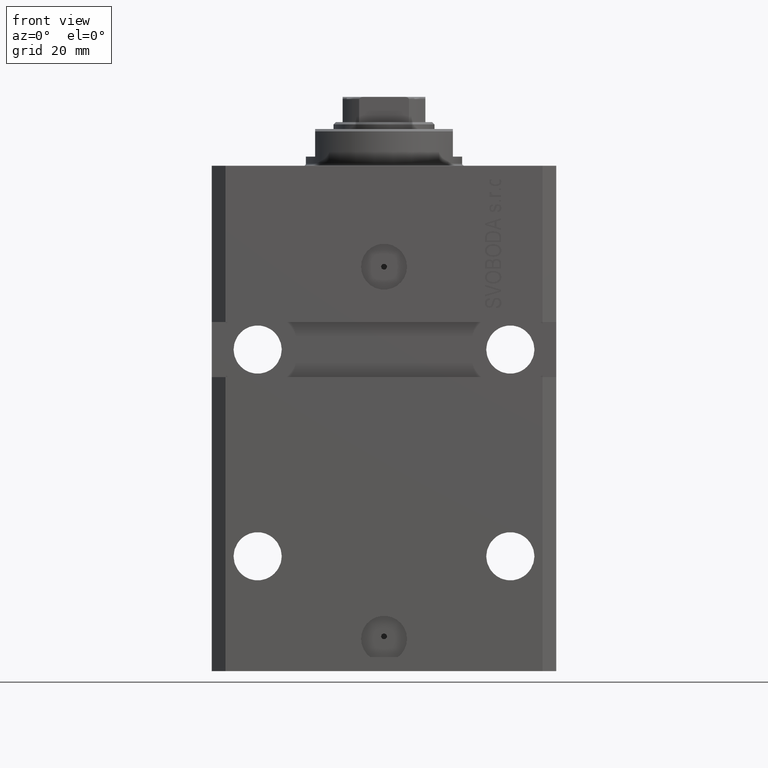
[diagram: clean part render]
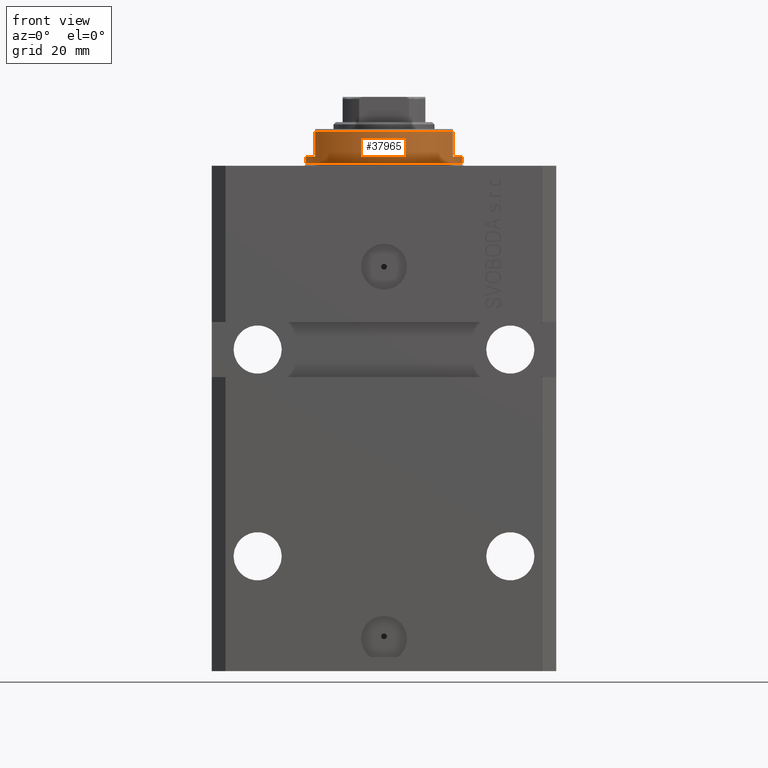
[diagram: same view with one face highlighted and labeled with its STEP entity id]
A machine part, front view. The second image highlights one B-rep face of the part: STEP entity #37965.
In plain terms, the highlighted cylindrical surface (partial cylindrical patch) has radius 17 mm, axis along (0, 0, -1).
Its self-contained STEP definition (entity closure, byte-faithful):
#478 = AXIS2_PLACEMENT_3D ( 'NONE', #17207, #39521, #24244 ) ;
#1403 = CARTESIAN_POINT ( 'NONE',  ( 14.99999999999999645, -8.000000000000003553, -2.000000000000000000 ) ) ;
#1882 = CARTESIAN_POINT ( 'NONE',  ( -17.00000000000000000, 2.081899558550500280E-15, -2.000000000000000000 ) ) ;
#2002 = ORIENTED_EDGE ( 'NONE', *, *, #36526, .F. ) ;
#3571 = CARTESIAN_POINT ( 'NONE',  ( 0.000000000000000000, 0.000000000000000000, -8.000000000000000000 ) ) ;
#4967 = ORIENTED_EDGE ( 'NONE', *, *, #11892, .T. ) ;
#5098 = DIRECTION ( 'NONE',  ( -0.000000000000000000, -0.000000000000000000, 1.000000000000000000 ) ) ;
#5615 = ORIENTED_EDGE ( 'NONE', *, *, #30352, .F. ) ;
#7191 = DIRECTION ( 'NONE',  ( -0.000000000000000000, -0.000000000000000000, 1.000000000000000000 ) ) ;
#7972 = CARTESIAN_POINT ( 'NONE',  ( 15.00000000000000000, -8.000000000000001776, -7.500000000000007105 ) ) ;
#8513 = LINE ( 'NONE', #30328, #10829 ) ;
#8931 = VERTEX_POINT ( 'NONE', #8963 ) ;
#8963 = CARTESIAN_POINT ( 'NONE',  ( -15.00000000000000000, -8.000000000000001776, -7.500000000000007105 ) ) ;
#8997 = EDGE_CURVE ( 'NONE', #39070, #22748, #28346, .T. ) ;
#9715 = ORIENTED_EDGE ( 'NONE', *, *, #19380, .F. ) ;
#10314 = DIRECTION ( 'NONE',  ( 1.000000000000000000, 0.000000000000000000, 0.000000000000000000 ) ) ;
#10401 = DIRECTION ( 'NONE',  ( -1.000000000000000000, 0.000000000000000000, 0.000000000000000000 ) ) ;
#10829 = VECTOR ( 'NONE', #45356, 1000.000000000000000 ) ;
#11525 = CIRCLE ( 'NONE', #16163, 17.00000000000000000 ) ;
#11892 = EDGE_CURVE ( 'NONE', #8931, #42100, #13965, .T. ) ;
#13672 = VERTEX_POINT ( 'NONE', #1882 ) ;
#13965 = CIRCLE ( 'NONE', #28673, 17.00000000000000000 ) ;
#15166 = FACE_OUTER_BOUND ( 'NONE', #26697, .T. ) ;
#15725 = LINE ( 'NONE', #23967, #20620 ) ;
#16163 = AXIS2_PLACEMENT_3D ( 'NONE', #39889, #21712, #10314 ) ;
#17207 = CARTESIAN_POINT ( 'NONE',  ( 0.000000000000000000, 0.000000000000000000, -2.000000000000000000 ) ) ;
#18587 = CYLINDRICAL_SURFACE ( 'NONE', #27076, 17.00000000000000000 ) ;
#19380 = EDGE_CURVE ( 'NONE', #39070, #21730, #21356, .T. ) ;
#19618 = EDGE_CURVE ( 'NONE', #47521, #13672, #38416, .T. ) ;
#20620 = VECTOR ( 'NONE', #38753, 1000.000000000000000 ) ;
#21356 = CIRCLE ( 'NONE', #478, 17.00000000000000000 ) ;
#21472 = ORIENTED_EDGE ( 'NONE', *, *, #33078, .T. ) ;
#21712 = DIRECTION ( 'NONE',  ( -0.000000000000000000, -0.000000000000000000, -1.000000000000000000 ) ) ;
#21730 = VERTEX_POINT ( 'NONE', #1403 ) ;
#22748 = VERTEX_POINT ( 'NONE', #27754 ) ;
#23752 = CARTESIAN_POINT ( 'NONE',  ( 17.00000000000000000, 0.000000000000000000, -8.000000000000000000 ) ) ;
#23967 = CARTESIAN_POINT ( 'NONE',  ( -17.00000000000000000, 2.081899558550500280E-15, -8.000000000000000000 ) ) ;
#24244 = DIRECTION ( 'NONE',  ( -1.000000000000000000, 0.000000000000000000, 0.000000000000000000 ) ) ;
#24388 = AXIS2_PLACEMENT_3D ( 'NONE', #29554, #47714, #10401 ) ;
#26697 = EDGE_LOOP ( 'NONE', ( #5615, #41091, #28157, #4967, #2002, #9715, #44660, #21472 ) ) ;
#27076 = AXIS2_PLACEMENT_3D ( 'NONE', #3571, #7191, #29958 ) ;
#27754 = CARTESIAN_POINT ( 'NONE',  ( 17.00000000000000000, 0.000000000000000000, -0.5000000000000004441 ) ) ;
#28157 = ORIENTED_EDGE ( 'NONE', *, *, #40995, .T. ) ;
#28346 = LINE ( 'NONE', #23752, #31266 ) ;
#28673 = AXIS2_PLACEMENT_3D ( 'NONE', #30109, #29868, #44906 ) ;
#29554 = CARTESIAN_POINT ( 'NONE',  ( 0.000000000000000000, 0.000000000000000000, -2.000000000000000000 ) ) ;
#29868 = DIRECTION ( 'NONE',  ( 0.000000000000000000, 0.000000000000000000, 1.000000000000000000 ) ) ;
#29958 = DIRECTION ( 'NONE',  ( 1.000000000000000000, 0.000000000000000000, 0.000000000000000000 ) ) ;
#30109 = CARTESIAN_POINT ( 'NONE',  ( 0.000000000000000000, 0.000000000000000000, -7.500000000000007105 ) ) ;
#30328 = CARTESIAN_POINT ( 'NONE',  ( 15.00000000000000000, -8.000000000000001776, -8.000000000000000000 ) ) ;
#30352 = EDGE_CURVE ( 'NONE', #13672, #43354, #15725, .T. ) ;
#30561 = DIRECTION ( 'NONE',  ( 0.000000000000000000, 0.000000000000000000, -1.000000000000000000 ) ) ;
#30811 = CARTESIAN_POINT ( 'NONE',  ( -15.00000000000000000, -8.000000000000001776, -8.000000000000000000 ) ) ;
#31266 = VECTOR ( 'NONE', #5098, 1000.000000000000000 ) ;
#33078 = EDGE_CURVE ( 'NONE', #22748, #43354, #11525, .T. ) ;
#35832 = CARTESIAN_POINT ( 'NONE',  ( -17.00000000000000000, 2.081899558550500280E-15, -0.5000000000000004441 ) ) ;
#36526 = EDGE_CURVE ( 'NONE', #21730, #42100, #8513, .T. ) ;
#36963 = VECTOR ( 'NONE', #30561, 1000.000000000000000 ) ;
#37965 = ADVANCED_FACE ( 'NONE', ( #15166 ), #18587, .T. ) ;
#38416 = CIRCLE ( 'NONE', #24388, 17.00000000000000000 ) ;
#38629 = CARTESIAN_POINT ( 'NONE',  ( 17.00000000000000000, 0.000000000000000000, -2.000000000000000000 ) ) ;
#38753 = DIRECTION ( 'NONE',  ( -0.000000000000000000, -0.000000000000000000, 1.000000000000000000 ) ) ;
#39070 = VERTEX_POINT ( 'NONE', #38629 ) ;
#39521 = DIRECTION ( 'NONE',  ( 0.000000000000000000, 0.000000000000000000, -1.000000000000000000 ) ) ;
#39889 = CARTESIAN_POINT ( 'NONE',  ( 0.000000000000000000, 0.000000000000000000, -0.5000000000000004441 ) ) ;
#40995 = EDGE_CURVE ( 'NONE', #47521, #8931, #42195, .T. ) ;
#41091 = ORIENTED_EDGE ( 'NONE', *, *, #19618, .F. ) ;
#42100 = VERTEX_POINT ( 'NONE', #7972 ) ;
#42195 = LINE ( 'NONE', #30811, #36963 ) ;
#43354 = VERTEX_POINT ( 'NONE', #35832 ) ;
#44660 = ORIENTED_EDGE ( 'NONE', *, *, #8997, .T. ) ;
#44906 = DIRECTION ( 'NONE',  ( -1.000000000000000000, 0.000000000000000000, 0.000000000000000000 ) ) ;
#45356 = DIRECTION ( 'NONE',  ( 0.000000000000000000, 0.000000000000000000, -1.000000000000000000 ) ) ;
#47521 = VERTEX_POINT ( 'NONE', #47664 ) ;
#47664 = CARTESIAN_POINT ( 'NONE',  ( -14.99999999999999645, -8.000000000000003553, -2.000000000000000000 ) ) ;
#47714 = DIRECTION ( 'NONE',  ( 0.000000000000000000, 0.000000000000000000, -1.000000000000000000 ) ) ;